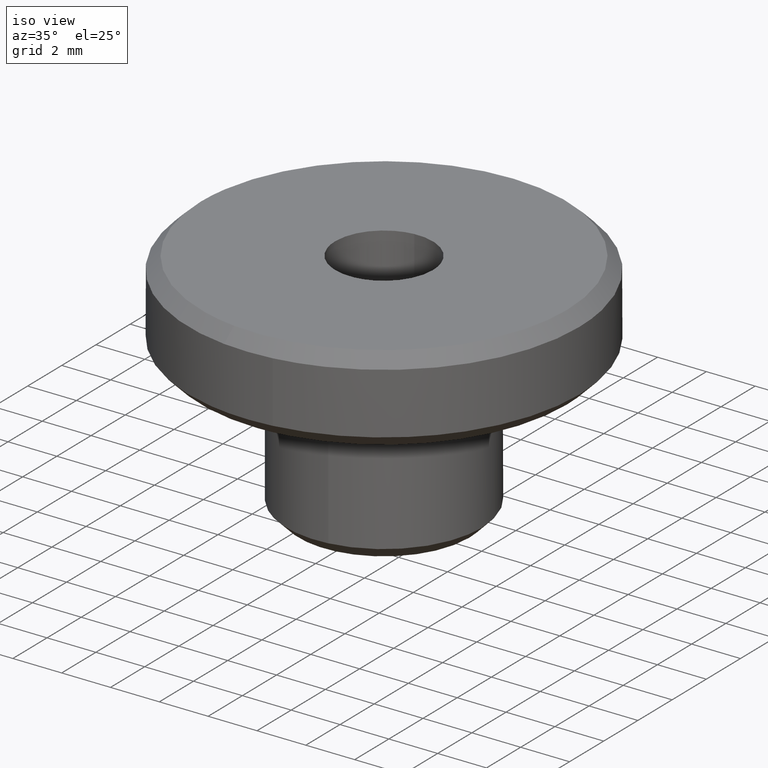
[diagram: clean part render]
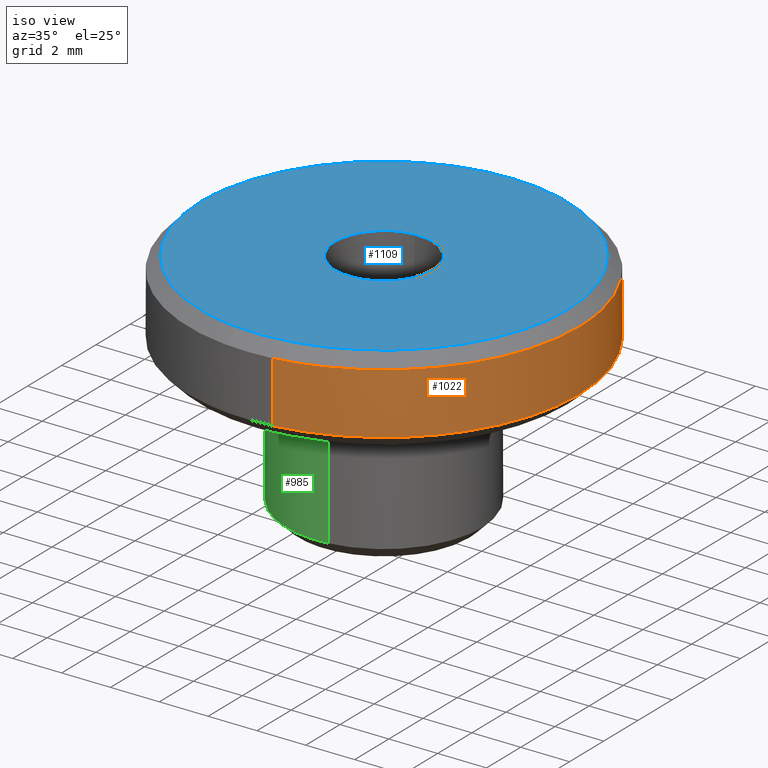
[diagram: same view with three faces highlighted in distinct colors, each labeled with its STEP entity id]
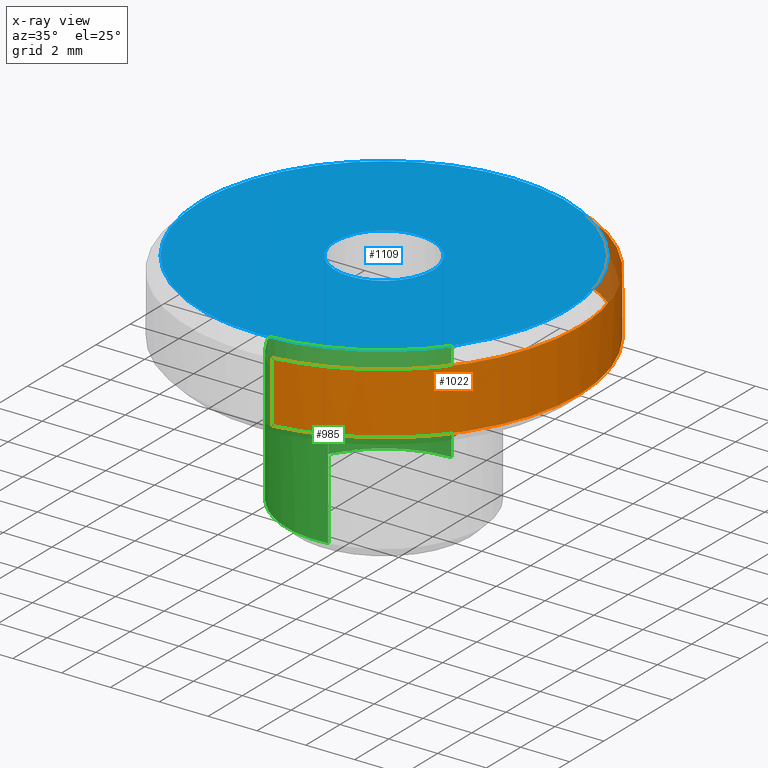
[diagram: x-ray of the same camera — body ghosted, the three highlighted faces saturated]
A machine part, iso view with three faces highlighted in distinct colors.
The next image is the same camera in x-ray (body ghosted, the three faces saturated) — at least one of them is partly hidden behind the body in this view.
Their STEP definitions:

[orange] entity #1022 — the highlighted face is a freeform B-spline surface patch.
#118=CARTESIAN_POINT('',(0.069812284010404,7.999695384516350,8.999999999996813));
#119=VERTEX_POINT('',#118);
#125=CARTESIAN_POINT('',(-0.069807241200332,7.999695428517923,9.000000000000023));
#126=VERTEX_POINT('',#125);
#127=CARTESIAN_POINT('',(-0.069807241200332,7.999695428517923,9.000000000000023));
#128=CARTESIAN_POINT('',(-0.034904285028288,8.0,9.0));
#129=CARTESIAN_POINT('',(-1.065814E-014,8.0,9.0));
#130=CARTESIAN_POINT('',(0.034906806589004,8.0,8.999999999999998));
#131=CARTESIAN_POINT('',(0.069812284010404,7.999695384516350,8.999999999996813));
#139=(BOUNDED_CURVE()B_SPLINE_CURVE(2,(#127,#128,#129,#130,#131),.UNSPECIFIED.,.F.,.U.)B_SPLINE_CURVE_WITH_KNOTS((3,2,3),(0.248460216700562,0.250000000000000,0.251539894336018),.UNSPECIFIED.)CURVE()GEOMETRIC_REPRESENTATION_ITEM()RATIONAL_B_SPLINE_CURVE((0.996414285067891,0.998196031652609,1.0,0.998195901565165,0.996414028098021))REPRESENTATION_ITEM(''));
#140=EDGE_CURVE('',#126,#119,#139,.T.);
#180=CARTESIAN_POINT('',(0.993019944666486,-7.938130219987430,8.999999999999979));
#181=VERTEX_POINT('',#180);
#197=CARTESIAN_POINT('',(7.999999999999989,0.0,9.0));
#198=VERTEX_POINT('',#197);
#199=CARTESIAN_POINT('',(7.999999999999989,0.0,9.0));
#200=CARTESIAN_POINT('',(7.999999999999989,-7.061592451773655,8.999999999999998));
#201=CARTESIAN_POINT('',(0.993019944666486,-7.938130219987430,8.999999999999979));
#209=(BOUNDED_CURVE()B_SPLINE_CURVE(2,(#199,#200,#201),.UNSPECIFIED.,.F.,.U.)B_SPLINE_CURVE_WITH_KNOTS((3,3),(0.500000000000000,0.728526157538534),.UNSPECIFIED.)CURVE()GEOMETRIC_REPRESENTATION_ITEM()RATIONAL_B_SPLINE_CURVE((1.0,0.732264952541874,0.954005598155769))REPRESENTATION_ITEM(''));
#210=EDGE_CURVE('',#198,#181,#209,.T.);
#212=CARTESIAN_POINT('',(0.069812284010404,7.999695384516350,8.999999999996813));
#213=CARTESIAN_POINT('',(7.999999999999990,7.930489684713439,9.0));
#214=CARTESIAN_POINT('',(7.999999999999989,0.0,9.0));
#222=(BOUNDED_CURVE()B_SPLINE_CURVE(2,(#212,#213,#214),.UNSPECIFIED.,.F.,.U.)B_SPLINE_CURVE_WITH_KNOTS((3,3),(0.251539894336017,0.500000000000000),.UNSPECIFIED.)CURVE()GEOMETRIC_REPRESENTATION_ITEM()RATIONAL_B_SPLINE_CURVE((0.996414028098022,0.708910879621383,1.0))REPRESENTATION_ITEM(''));
#223=EDGE_CURVE('',#119,#198,#222,.T.);
#361=CARTESIAN_POINT('',(-0.069806827217457,7.999695432130153,6.500000000000000));
#362=VERTEX_POINT('',#361);
#376=CARTESIAN_POINT('',(7.999999999999989,0.0,6.500000000000000));
#377=VERTEX_POINT('',#376);
#378=CARTESIAN_POINT('',(7.999999999999989,0.0,6.500000000000000));
#379=CARTESIAN_POINT('',(7.999999999999991,8.0,6.500000000000001));
#380=CARTESIAN_POINT('',(-1.065814E-014,8.0,6.500000000000000));
#381=CARTESIAN_POINT('',(-0.034904078025030,8.0,6.500000000000000));
#382=CARTESIAN_POINT('',(-0.069806827217457,7.999695432130153,6.500000000000000));
#390=(BOUNDED_CURVE()B_SPLINE_CURVE(2,(#378,#379,#380,#381,#382),.UNSPECIFIED.,.F.,.U.)B_SPLINE_CURVE_WITH_KNOTS((3,2,3),(0.500000000000000,0.750000000000000,0.751539774184077),.UNSPECIFIED.)CURVE()GEOMETRIC_REPRESENTATION_ITEM()RATIONAL_B_SPLINE_CURVE((1.0,0.707106781186548,1.0,0.998196042331919,0.996414306163410))REPRESENTATION_ITEM(''));
#391=EDGE_CURVE('',#377,#362,#390,.T.);
#393=CARTESIAN_POINT('',(6.550928901686220,-4.591876579902039,6.500000000000023));
#394=VERTEX_POINT('',#393);
#395=CARTESIAN_POINT('',(6.550928901686220,-4.591876579902039,6.500000000000023));
#396=CARTESIAN_POINT('',(7.999999999999989,-2.524581962252997,6.500000000000000));
#397=CARTESIAN_POINT('',(7.999999999999989,0.0,6.500000000000000));
#405=(BOUNDED_CURVE()B_SPLINE_CURVE(2,(#395,#396,#397),.UNSPECIFIED.,.F.,.U.)B_SPLINE_CURVE_WITH_KNOTS((3,3),(0.401326273797096,0.500000000000000),.UNSPECIFIED.)CURVE()GEOMETRIC_REPRESENTATION_ITEM()RATIONAL_B_SPLINE_CURVE((0.860049271925856,0.884396538880457,1.0))REPRESENTATION_ITEM(''));
#406=EDGE_CURVE('',#394,#377,#405,.T.);
#444=CARTESIAN_POINT('',(0.993020157126018,-7.938130193409922,6.500000000000000));
#445=VERTEX_POINT('',#444);
#446=CARTESIAN_POINT('',(0.993020157126018,-7.938130193409922,6.500000000000000));
#447=CARTESIAN_POINT('',(4.514119867253672,-7.497658331370856,6.500000000000000));
#448=CARTESIAN_POINT('',(6.550928901686220,-4.591876579902039,6.500000000000023));
#456=(BOUNDED_CURVE()B_SPLINE_CURVE(2,(#446,#447,#448),.UNSPECIFIED.,.F.,.U.)B_SPLINE_CURVE_WITH_KNOTS((3,3),(0.271473846975178,0.401326273797096),.UNSPECIFIED.)CURVE()GEOMETRIC_REPRESENTATION_ITEM()RATIONAL_B_SPLINE_CURVE((0.954005589396391,0.828008810678505,0.860049271925856))REPRESENTATION_ITEM(''));
#457=EDGE_CURVE('',#445,#394,#456,.T.);
#986=CARTESIAN_POINT('',(0.993024016638624,-7.938129710604309,6.437499999999999));
#987=CARTESIAN_POINT('',(8.061862644019548,-7.053850065065769,6.437499999999999));
#988=CARTESIAN_POINT('',(7.999695384513357,0.069812283986991,6.437499999999999));
#989=CARTESIAN_POINT('',(7.929883100526366,8.069507668500359,6.437499999999999));
#990=CARTESIAN_POINT('',(-0.069812283987002,7.999695384513368,6.437499999999999));
#991=CARTESIAN_POINT('',(0.993024016638624,-7.938129710604309,9.064062500000002));
#992=CARTESIAN_POINT('',(8.061862644019548,-7.053850065065769,9.064062500000002));
#993=CARTESIAN_POINT('',(7.999695384513357,0.069812283986991,9.064062500000002));
#994=CARTESIAN_POINT('',(7.929883100526366,8.069507668500359,9.064062500000002));
#995=CARTESIAN_POINT('',(-0.069812283987002,7.999695384513368,9.064062500000002));
#1003=(BOUNDED_SURFACE()B_SPLINE_SURFACE(2,1,((#986,#991),(#987,#992),(#988,#993),(#989,#994),(#990,#995)),.UNSPECIFIED.,.F.,.F.,.U.)B_SPLINE_SURFACE_WITH_KNOTS((3,2,3),(2,2),(0.0,12.194447276263910,25.449281272202949),(0.0,2.626562500000004),.UNSPECIFIED.)GEOMETRIC_REPRESENTATION_ITEM()RATIONAL_B_SPLINE_SURFACE(((0.956886118190660,0.956886118190660),(0.730538238691624,0.730538238691624),(1.0,1.0),(0.707106781186548,0.707106781186548),(1.0,1.0)))REPRESENTATION_ITEM('')SURFACE());
#1004=ORIENTED_EDGE('',*,*,#210,.T.);
#1005=CARTESIAN_POINT('',(0.993020157126018,-7.938130193409922,6.500000000000000));
#1006=CARTESIAN_POINT('',(0.993019944666486,-7.938130219987430,8.999999999999979));
#1007=QUASI_UNIFORM_CURVE('',1,(#1005,#1006),.UNSPECIFIED.,.F.,.U.);
#1008=EDGE_CURVE('',#445,#181,#1007,.T.);
#1009=ORIENTED_EDGE('',*,*,#1008,.F.);
#1010=ORIENTED_EDGE('',*,*,#457,.T.);
#1011=ORIENTED_EDGE('',*,*,#406,.T.);
#1012=ORIENTED_EDGE('',*,*,#391,.T.);
#1013=CARTESIAN_POINT('',(-0.069806827217457,7.999695432130153,6.500000000000000));
#1014=CARTESIAN_POINT('',(-0.069807241200332,7.999695428517923,9.000000000000023));
#1015=QUASI_UNIFORM_CURVE('',1,(#1013,#1014),.UNSPECIFIED.,.F.,.U.);
#1016=EDGE_CURVE('',#362,#126,#1015,.T.);
#1017=ORIENTED_EDGE('',*,*,#1016,.T.);
#1018=ORIENTED_EDGE('',*,*,#140,.T.);
#1019=ORIENTED_EDGE('',*,*,#223,.T.);
#1020=EDGE_LOOP('',(#1004,#1009,#1010,#1011,#1012,#1017,#1018,#1019));
#1021=FACE_OUTER_BOUND('',#1020,.T.);
#1022=ADVANCED_FACE('',(#1021),#1003,.T.);

[blue] entity #1109 — the highlighted face is a freeform B-spline surface patch.
#79=CARTESIAN_POINT('',(-0.930960015612381,-7.441996603691548,9.499999999998270));
#80=VERTEX_POINT('',#79);
#86=CARTESIAN_POINT('',(-7.500000000000010,0.0,9.500000000000000));
#87=VERTEX_POINT('',#86);
#88=CARTESIAN_POINT('',(-7.500000000000010,0.0,9.500000000000000));
#89=CARTESIAN_POINT('',(-7.500000000000008,-6.620239501102615,9.499999999999998));
#90=CARTESIAN_POINT('',(-0.930960015612380,-7.441996603691548,9.499999999998270));
#98=(BOUNDED_CURVE()B_SPLINE_CURVE(2,(#88,#89,#90),.UNSPECIFIED.,.F.,.U.)B_SPLINE_CURVE_WITH_KNOTS((3,3),(0.500000000000000,0.728526071028690),.UNSPECIFIED.)CURVE()GEOMETRIC_REPRESENTATION_ITEM()RATIONAL_B_SPLINE_CURVE((1.0,0.732265053894462,0.954005430273536))REPRESENTATION_ITEM(''));
#99=EDGE_CURVE('',#87,#80,#98,.T.);
#101=CARTESIAN_POINT('',(0.065449016252098,7.499714422983092,9.499999999998039));
#102=VERTEX_POINT('',#101);
#103=CARTESIAN_POINT('',(0.065449016252098,7.499714422983092,9.499999999998039));
#104=CARTESIAN_POINT('',(0.032725131169539,7.500000000000001,9.500000000000000));
#105=CARTESIAN_POINT('',(-1.065814E-014,7.500000000000000,9.500000000000000));
#106=CARTESIAN_POINT('',(-7.500000000000009,7.500000000000000,9.500000000000000));
#107=CARTESIAN_POINT('',(-7.500000000000010,0.0,9.500000000000000));
#115=(BOUNDED_CURVE()B_SPLINE_CURVE(2,(#103,#104,#105,#106,#107),.UNSPECIFIED.,.F.,.U.)B_SPLINE_CURVE_WITH_KNOTS((3,2,3),(0.248460105664342,0.250000000000000,0.500000000000000),.UNSPECIFIED.)CURVE()GEOMETRIC_REPRESENTATION_ITEM()RATIONAL_B_SPLINE_CURVE((0.996414028098853,0.998195901565586,1.0,0.707106781186547,1.0))REPRESENTATION_ITEM(''));
#116=EDGE_CURVE('',#102,#87,#115,.T.);
#226=CARTESIAN_POINT('',(7.499999999999989,0.0,9.500000000000000));
#227=VERTEX_POINT('',#226);
#228=CARTESIAN_POINT('',(7.499999999999989,0.0,9.500000000000000));
#229=CARTESIAN_POINT('',(7.499999999999988,7.434834079434003,9.500000000000000));
#230=CARTESIAN_POINT('',(0.065449016252098,7.499714422983092,9.499999999998039));
#238=(BOUNDED_CURVE()B_SPLINE_CURVE(2,(#228,#229,#230),.UNSPECIFIED.,.F.,.U.)B_SPLINE_CURVE_WITH_KNOTS((3,3),(0.0,0.248460105664342),.UNSPECIFIED.)CURVE()GEOMETRIC_REPRESENTATION_ITEM()RATIONAL_B_SPLINE_CURVE((1.0,0.708910879620962,0.996414028098852))REPRESENTATION_ITEM(''));
#239=EDGE_CURVE('',#227,#102,#238,.T.);
#241=CARTESIAN_POINT('',(-0.930960015612381,-7.441996603691548,9.499999999998270));
#242=CARTESIAN_POINT('',(-0.467286956514814,-7.500000000000000,9.500000000000000));
#243=CARTESIAN_POINT('',(-1.065814E-014,-7.500000000000000,9.500000000000000));
#244=CARTESIAN_POINT('',(7.499999999999989,-7.500000000000000,9.500000000000000));
#245=CARTESIAN_POINT('',(7.499999999999989,0.0,9.500000000000000));
#253=(BOUNDED_CURVE()B_SPLINE_CURVE(2,(#241,#242,#243,#244,#245),.UNSPECIFIED.,.F.,.U.)B_SPLINE_CURVE_WITH_KNOTS((3,2,3),(0.728526071028690,0.750000000000000,1.0),.UNSPECIFIED.)CURVE()GEOMETRIC_REPRESENTATION_ITEM()RATIONAL_B_SPLINE_CURVE((0.954005430273537,0.974841727292086,1.0,0.707106781186547,1.0))REPRESENTATION_ITEM(''));
#254=EDGE_CURVE('',#80,#227,#253,.T.);
#712=CARTESIAN_POINT('',(0.156918191470717,-1.993834667465072,9.500000000000000));
#713=VERTEX_POINT('',#712);
#719=CARTESIAN_POINT('',(1.999999999999989,0.0,9.500000000000000));
#720=VERTEX_POINT('',#719);
#721=CARTESIAN_POINT('',(1.999999999999989,0.0,9.500000000000000));
#722=CARTESIAN_POINT('',(1.999999999999990,-1.848780983288440,9.500000000000000));
#723=CARTESIAN_POINT('',(0.156918191470717,-1.993834667465072,9.500000000000000));
#731=(BOUNDED_CURVE()B_SPLINE_CURVE(2,(#721,#722,#723),.UNSPECIFIED.,.F.,.U.)B_SPLINE_CURVE_WITH_KNOTS((3,3),(0.0,0.236331300630181),.UNSPECIFIED.)CURVE()GEOMETRIC_REPRESENTATION_ITEM()RATIONAL_B_SPLINE_CURVE((1.0,0.723120658608226,0.969723356166419))REPRESENTATION_ITEM(''));
#732=EDGE_CURVE('',#720,#713,#731,.T.);
#734=CARTESIAN_POINT('',(-0.156918191470738,1.993834667465072,9.500000000000000));
#735=VERTEX_POINT('',#734);
#736=CARTESIAN_POINT('',(-0.156918191470738,1.993834667465073,9.500000000000000));
#737=CARTESIAN_POINT('',(-0.078580214030456,2.0,9.500000000000002));
#738=CARTESIAN_POINT('',(-1.065814E-014,2.0,9.500000000000000));
#739=CARTESIAN_POINT('',(1.999999999999989,2.000000000000000,9.500000000000000));
#740=CARTESIAN_POINT('',(1.999999999999989,0.0,9.500000000000000));
#748=(BOUNDED_CURVE()B_SPLINE_CURVE(2,(#736,#737,#738,#739,#740),.UNSPECIFIED.,.F.,.U.)B_SPLINE_CURVE_WITH_KNOTS((3,2,3),(0.736331300630181,0.750000000000000,1.0),.UNSPECIFIED.)CURVE()GEOMETRIC_REPRESENTATION_ITEM()RATIONAL_B_SPLINE_CURVE((0.969723356166419,0.983986122578322,1.0,0.707106781186548,1.0))REPRESENTATION_ITEM(''));
#749=EDGE_CURVE('',#735,#720,#748,.T.);
#825=CARTESIAN_POINT('',(-2.000000000000011,0.0,9.500000000000000));
#826=VERTEX_POINT('',#825);
#827=CARTESIAN_POINT('',(-2.000000000000011,0.0,9.500000000000000));
#828=CARTESIAN_POINT('',(-2.000000000000012,1.848780983288445,9.500000000000000));
#829=CARTESIAN_POINT('',(-0.156918191470738,1.993834667465073,9.500000000000000));
#837=(BOUNDED_CURVE()B_SPLINE_CURVE(2,(#827,#828,#829),.UNSPECIFIED.,.F.,.U.)B_SPLINE_CURVE_WITH_KNOTS((3,3),(0.500000000000000,0.736331300630181),.UNSPECIFIED.)CURVE()GEOMETRIC_REPRESENTATION_ITEM()RATIONAL_B_SPLINE_CURVE((1.0,0.723120658608226,0.969723356166420))REPRESENTATION_ITEM(''));
#838=EDGE_CURVE('',#826,#735,#837,.T.);
#840=CARTESIAN_POINT('',(0.156918191470717,-1.993834667465073,9.500000000000000));
#841=CARTESIAN_POINT('',(0.078580214030436,-2.000000000000000,9.500000000000000));
#842=CARTESIAN_POINT('',(-1.065814E-014,-2.0,9.500000000000000));
#843=CARTESIAN_POINT('',(-2.000000000000011,-2.000000000000000,9.500000000000000));
#844=CARTESIAN_POINT('',(-2.000000000000011,0.0,9.500000000000000));
#852=(BOUNDED_CURVE()B_SPLINE_CURVE(2,(#840,#841,#842,#843,#844),.UNSPECIFIED.,.F.,.U.)B_SPLINE_CURVE_WITH_KNOTS((3,2,3),(0.236331300630181,0.250000000000000,0.500000000000000),.UNSPECIFIED.)CURVE()GEOMETRIC_REPRESENTATION_ITEM()RATIONAL_B_SPLINE_CURVE((0.969723356166419,0.983986122578321,1.0,0.707106781186548,1.0))REPRESENTATION_ITEM(''));
#853=EDGE_CURVE('',#713,#826,#852,.T.);
#1092=CARTESIAN_POINT('',(-8.249249970927099,-8.248721004380286,9.500000000000000));
#1093=CARTESIAN_POINT('',(8.249250373258430,-8.248721004380286,9.500000000000000));
#1094=CARTESIAN_POINT('',(-8.249249970927099,8.248925120486318,9.500000000000000));
#1095=CARTESIAN_POINT('',(8.249250373258430,8.248925120486318,9.500000000000000));
#1096=B_SPLINE_SURFACE_WITH_KNOTS('',1,1,((#1092,#1094),(#1093,#1095)),.UNSPECIFIED.,.F.,.F.,.U.,(2,2),(2,2),(0.0,16.498500344185530),(0.0,16.497646124866609),.UNSPECIFIED.);
#1097=ORIENTED_EDGE('',*,*,#239,.T.);
#1098=ORIENTED_EDGE('',*,*,#116,.T.);
#1099=ORIENTED_EDGE('',*,*,#99,.T.);
#1100=ORIENTED_EDGE('',*,*,#254,.T.);
#1101=EDGE_LOOP('',(#1097,#1098,#1099,#1100));
#1102=FACE_OUTER_BOUND('',#1101,.T.);
#1103=ORIENTED_EDGE('',*,*,#838,.T.);
#1104=ORIENTED_EDGE('',*,*,#749,.T.);
#1105=ORIENTED_EDGE('',*,*,#732,.T.);
#1106=ORIENTED_EDGE('',*,*,#853,.T.);
#1107=EDGE_LOOP('',(#1103,#1104,#1105,#1106));
#1108=FACE_BOUND('',#1107,.T.);
#1109=ADVANCED_FACE('',(#1102,#1108),#1096,.T.);

[green] entity #985 — the highlighted face is a freeform B-spline surface patch.
#498=CARTESIAN_POINT('',(-1.616861727963373,-3.658655238288483,0.500000000000999));
#499=VERTEX_POINT('',#498);
#500=CARTESIAN_POINT('',(0.496510696364964,-3.969065019421251,0.499999999999956));
#501=VERTEX_POINT('',#500);
#502=CARTESIAN_POINT('',(-1.616861727963373,-3.658655238288482,0.500000000000999));
#503=CARTESIAN_POINT('',(-0.844462469020603,-4.000000000000001,0.499999999999945));
#504=CARTESIAN_POINT('',(-1.065814E-014,-4.0,0.499999999999945));
#505=CARTESIAN_POINT('',(0.249219046477814,-4.000000000000001,0.499999999999945));
#506=CARTESIAN_POINT('',(0.496510696364964,-3.969065019421251,0.499999999999956));
#514=(BOUNDED_CURVE()B_SPLINE_CURVE(2,(#502,#503,#504,#505,#506),.UNSPECIFIED.,.F.,.U.)B_SPLINE_CURVE_WITH_KNOTS((3,2,3),(0.181361578458957,0.250000000000000,0.271473873225641),.UNSPECIFIED.)CURVE()GEOMETRIC_REPRESENTATION_ITEM()RATIONAL_B_SPLINE_CURVE((0.883326595750854,0.919585087122277,1.0,0.974841792602200,0.954005538454358))REPRESENTATION_ITEM(''));
#515=EDGE_CURVE('',#499,#501,#514,.T.);
#558=CARTESIAN_POINT('',(-0.034904604637149,3.999847705671220,0.499999999999363));
#559=VERTEX_POINT('',#558);
#616=CARTESIAN_POINT('',(-4.000000000000011,0.0,0.499999999999945));
#617=VERTEX_POINT('',#616);
#618=CARTESIAN_POINT('',(-4.000000000000011,0.0,0.499999999999945));
#619=CARTESIAN_POINT('',(-4.000000000000012,-2.605480010348695,0.499999999999945));
#620=CARTESIAN_POINT('',(-1.616861727963373,-3.658655238288482,0.500000000000999));
#628=(BOUNDED_CURVE()B_SPLINE_CURVE(2,(#618,#619,#620),.UNSPECIFIED.,.F.,.U.)B_SPLINE_CURVE_WITH_KNOTS((3,3),(0.0,0.181361578458957),.UNSPECIFIED.)CURVE()GEOMETRIC_REPRESENTATION_ITEM()RATIONAL_B_SPLINE_CURVE((1.0,0.787521694064270,0.883326595750854))REPRESENTATION_ITEM(''));
#629=EDGE_CURVE('',#617,#499,#628,.T.);
#631=CARTESIAN_POINT('',(-0.034904604637149,3.999847705671220,0.499999999999363));
#632=CARTESIAN_POINT('',(-4.000000000000011,3.965246366494845,0.499999999999945));
#633=CARTESIAN_POINT('',(-4.000000000000011,0.0,0.499999999999945));
#641=(BOUNDED_CURVE()B_SPLINE_CURVE(2,(#631,#632,#633),.UNSPECIFIED.,.F.,.U.)B_SPLINE_CURVE_WITH_KNOTS((3,3),(0.751539826633849,1.0),.UNSPECIFIED.)CURVE()GEOMETRIC_REPRESENTATION_ITEM()RATIONAL_B_SPLINE_CURVE((0.996414184779850,0.708910800303359,1.0))REPRESENTATION_ITEM(''));
#642=EDGE_CURVE('',#559,#617,#641,.T.);
#879=CARTESIAN_POINT('',(-0.034902881422557,3.999847720708598,6.000000000000001));
#880=VERTEX_POINT('',#879);
#881=CARTESIAN_POINT('',(-0.034904604637149,3.999847705671220,0.499999999999363));
#882=CARTESIAN_POINT('',(-0.034902881422557,3.999847720708598,6.000000000000001));
#883=QUASI_UNIFORM_CURVE('',1,(#881,#882),.UNSPECIFIED.,.F.,.U.);
#884=EDGE_CURVE('',#559,#880,#883,.T.);
#903=CARTESIAN_POINT('',(0.496507199149395,-3.969065456901576,6.0));
#904=VERTEX_POINT('',#903);
#918=CARTESIAN_POINT('',(0.496510696364964,-3.969065019421251,0.499999999999956));
#919=CARTESIAN_POINT('',(0.496507199149395,-3.969065456901576,6.0));
#920=QUASI_UNIFORM_CURVE('',1,(#918,#919),.UNSPECIFIED.,.F.,.U.);
#921=EDGE_CURVE('',#501,#904,#920,.T.);
#926=CARTESIAN_POINT('',(-0.034906141993506,3.999847692256684,0.362499999999943));
#927=CARTESIAN_POINT('',(-4.034753834250190,3.964941550263188,0.362499999999943));
#928=CARTESIAN_POINT('',(-3.999847692256695,-0.034906141993496,0.362499999999943));
#929=CARTESIAN_POINT('',(-3.964941550263200,-4.034753834250179,0.362499999999943));
#930=CARTESIAN_POINT('',(0.034906141993485,-3.999847692256684,0.362499999999943));
#931=CARTESIAN_POINT('',(0.266600635832684,-3.997825725041103,0.362499999999943));
#932=CARTESIAN_POINT('',(0.496512008319306,-3.969064855302155,0.362499999999943));
#933=CARTESIAN_POINT('',(-0.034906141993506,3.999847692256684,6.140937500000002));
#934=CARTESIAN_POINT('',(-4.034753834250190,3.964941550263188,6.140937500000002));
#935=CARTESIAN_POINT('',(-3.999847692256695,-0.034906141993496,6.140937500000002));
#936=CARTESIAN_POINT('',(-3.964941550263200,-4.034753834250179,6.140937500000002));
#937=CARTESIAN_POINT('',(0.034906141993485,-3.999847692256684,6.140937500000002));
#938=CARTESIAN_POINT('',(0.266600635832684,-3.997825725041103,6.140937500000002));
#939=CARTESIAN_POINT('',(0.496512008319306,-3.969064855302155,6.140937500000002));
#947=(BOUNDED_SURFACE()B_SPLINE_SURFACE(2,1,((#926,#933),(#927,#934),(#928,#935),(#929,#936),(#930,#937),(#931,#938),(#932,#939)),.UNSPECIFIED.,.F.,.F.,.U.)B_SPLINE_SURFACE_WITH_KNOTS((3,2,2,3),(2,2),(0.0,6.627416997969519,13.254833995939039,13.785027355776601),(0.0,5.778437500000059),.UNSPECIFIED.)GEOMETRIC_REPRESENTATION_ITEM()RATIONAL_B_SPLINE_SURFACE(((1.0,1.0),(0.707106781186548,0.707106781186548),(1.0,1.0),(0.707106781186548,0.707106781186548),(1.0,1.0),(0.976568542494924,0.976568542494924),(0.956886118190660,0.956886118190660)))REPRESENTATION_ITEM('')SURFACE());
#948=ORIENTED_EDGE('',*,*,#629,.T.);
#949=ORIENTED_EDGE('',*,*,#515,.T.);
#950=ORIENTED_EDGE('',*,*,#921,.T.);
#951=CARTESIAN_POINT('',(-4.000000000000011,0.0,6.0));
#952=VERTEX_POINT('',#951);
#953=CARTESIAN_POINT('',(0.496507199149395,-3.969065456901576,6.0));
#954=CARTESIAN_POINT('',(0.249217277400862,-4.000000000000001,6.0));
#955=CARTESIAN_POINT('',(-1.065814E-014,-4.0,6.0));
#956=CARTESIAN_POINT('',(-4.000000000000011,-4.000000000000000,6.0));
#957=CARTESIAN_POINT('',(-4.000000000000011,0.0,6.0));
#965=(BOUNDED_CURVE()B_SPLINE_CURVE(2,(#953,#954,#955,#956,#957),.UNSPECIFIED.,.F.,.U.)B_SPLINE_CURVE_WITH_KNOTS((3,2,3),(0.728526275371378,0.750000000000000,1.0),.UNSPECIFIED.)CURVE()GEOMETRIC_REPRESENTATION_ITEM()RATIONAL_B_SPLINE_CURVE((0.954005826824084,0.974841966694437,1.0,0.707106781186548,1.0))REPRESENTATION_ITEM(''));
#966=EDGE_CURVE('',#904,#952,#965,.T.);
#967=ORIENTED_EDGE('',*,*,#966,.T.);
#968=CARTESIAN_POINT('',(-4.000000000000011,0.0,6.0));
#969=CARTESIAN_POINT('',(-4.000000000000011,3.965248074867892,6.000000000000001));
#970=CARTESIAN_POINT('',(-0.034902881422557,3.999847720708598,6.000000000000001));
#978=(BOUNDED_CURVE()B_SPLINE_CURVE(2,(#968,#969,#970),.UNSPECIFIED.,.F.,.U.)B_SPLINE_CURVE_WITH_KNOTS((3,3),(0.0,0.248460249252010),.UNSPECIFIED.)CURVE()GEOMETRIC_REPRESENTATION_ITEM()RATIONAL_B_SPLINE_CURVE((1.0,0.708910711397544,0.996414360401140))REPRESENTATION_ITEM(''));
#979=EDGE_CURVE('',#952,#880,#978,.T.);
#980=ORIENTED_EDGE('',*,*,#979,.T.);
#981=ORIENTED_EDGE('',*,*,#884,.F.);
#982=ORIENTED_EDGE('',*,*,#642,.T.);
#983=EDGE_LOOP('',(#948,#949,#950,#967,#980,#981,#982));
#984=FACE_OUTER_BOUND('',#983,.T.);
#985=ADVANCED_FACE('',(#984),#947,.T.);